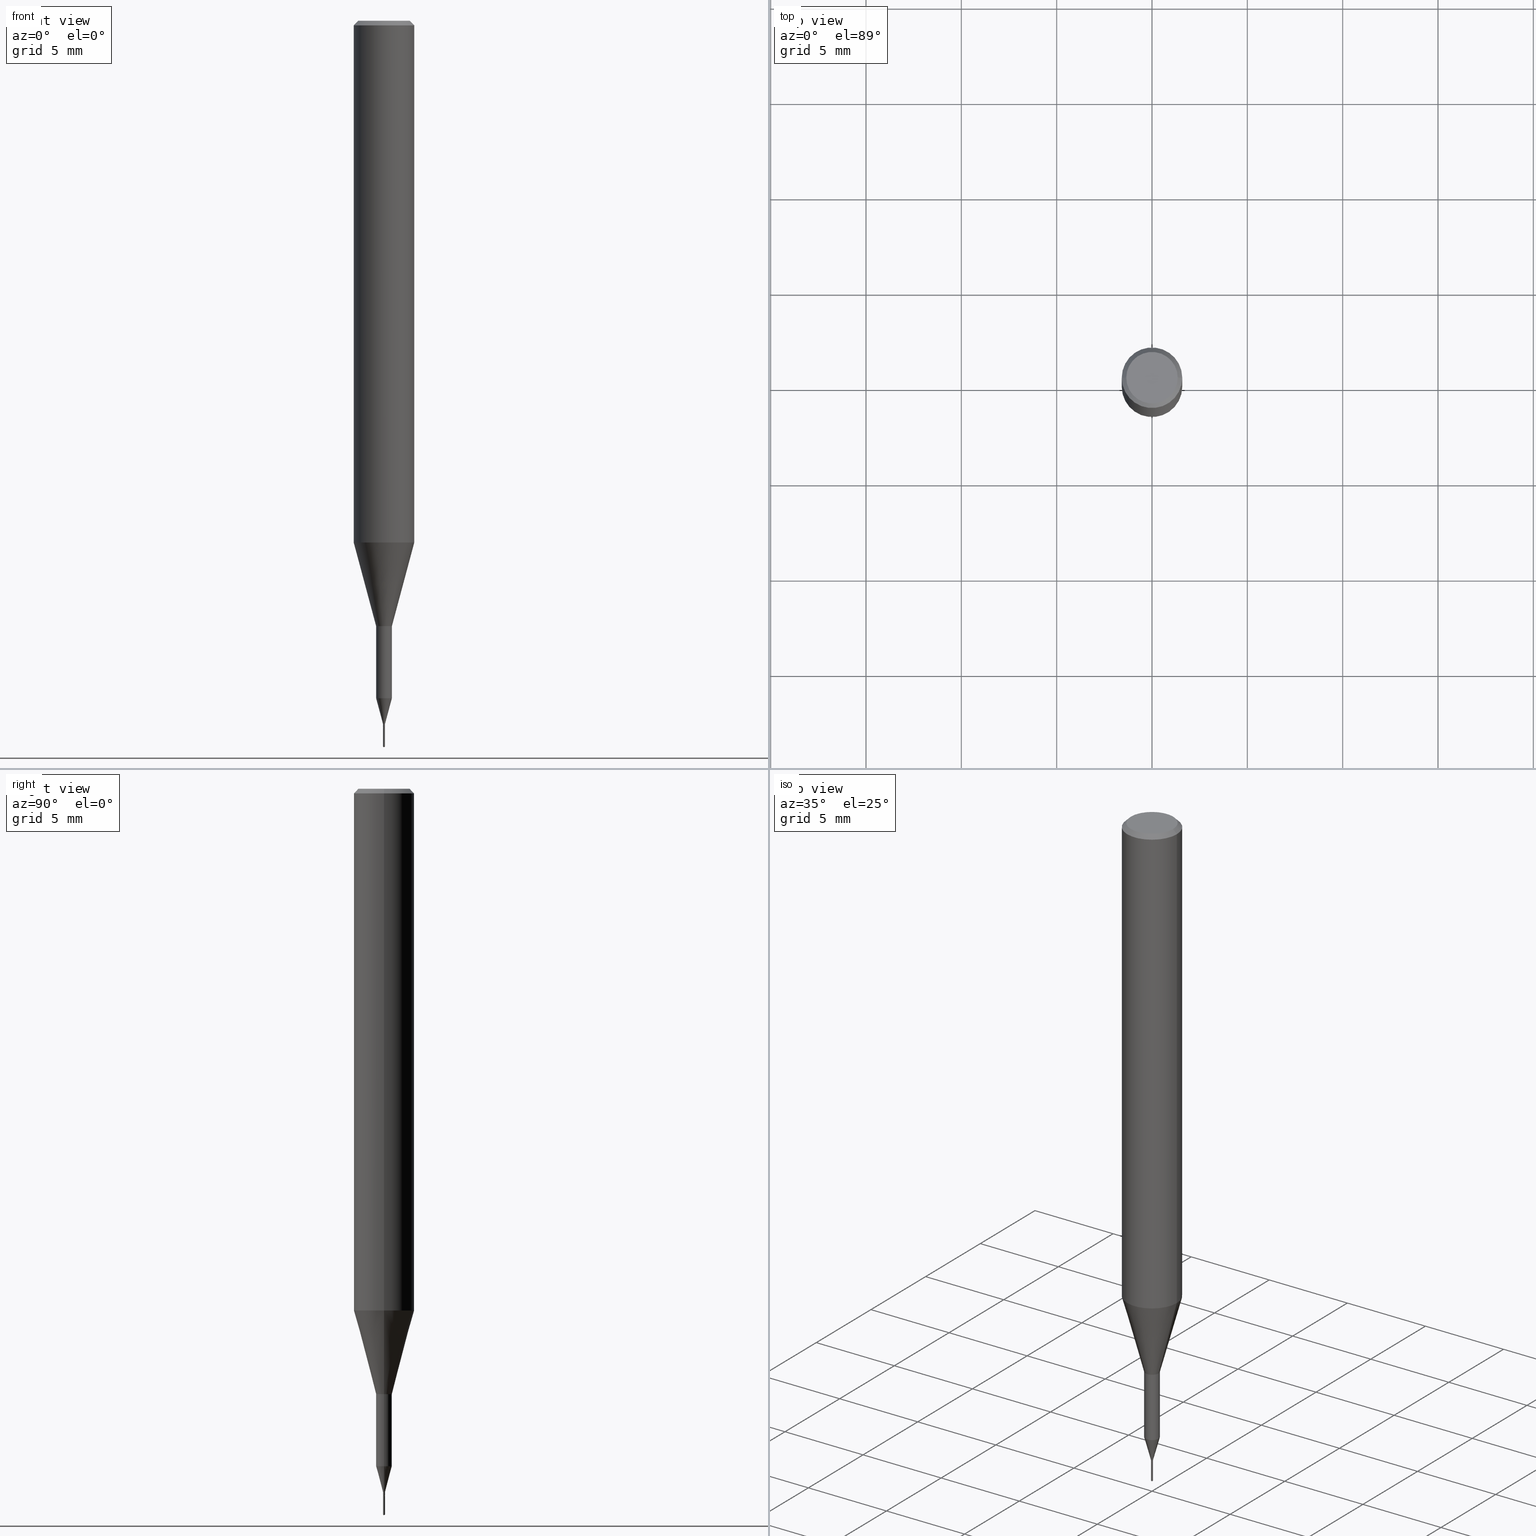
[diagram: canonical four-view strip — front | top / right | iso, engineering-drawing reading convention]
A machine part, canonical four-view strip (front | top / right | iso — engineering-drawing reading convention). The complete STEP part file that produces these views, byte-faithful:
ISO-10303-21;
HEADER;
FILE_DESCRIPTION (( 'STEP AP203' ),
    '1' );
FILE_NAME ('07098.STEP',
    '2024-04-19T13:29:56',
    ( '' ),
    ( '' ),
    'SwSTEP 2.0',
    'SolidWorks 2023',
    '' );
FILE_SCHEMA (( 'CONFIG_CONTROL_DESIGN' ));
ENDSEC;

DATA;
#1 = DIRECTION ( 'NONE',  ( 1.000000000000000000, -6.982962677686264344E-15, 0.000000000000000000 ) ) ;
#2 = CARTESIAN_POINT ( 'NONE',  ( -0.06250000000000012490, -3.317607122755211895E-15, -1.077392650149939346 ) ) ;
#3 = DIRECTION ( 'NONE',  ( -2.445468806185136877E-29, 3.491481338843145188E-15, 1.000000000000000000 ) ) ;
#4 = VERTEX_POINT ( 'NONE', #379 ) ;
#5 = DIRECTION ( 'NONE',  ( 2.461818195733172515E-29, -3.468068082460894112E-15, -1.000000000000000000 ) ) ;
#6 = VECTOR ( 'NONE', #485, 39.37007874015748143 ) ;
#7 = CARTESIAN_POINT ( 'NONE',  ( 3.569161722627207033E-29, -5.095817014041571654E-15, -1.459500000000000020 ) ) ;
#8 = EDGE_LOOP ( 'NONE', ( #531, #38, #203 ) ) ;
#9 = CIRCLE ( 'NONE', #79, 0.002000000000000000042 ) ;
#10 = PLANE ( 'NONE',  #145 ) ;
#11 = CC_DESIGN_PERSON_AND_ORGANIZATION_ASSIGNMENT ( #378, #554, ( #574 ) ) ;
#12 = ORIENTED_EDGE ( 'NONE', *, *, #456, .F. ) ;
#13 = CARTESIAN_POINT ( 'NONE',  ( 3.550820706580818935E-29, -5.069630904000248312E-15, -1.452000000000000179 ) ) ;
#14 = ORIENTED_EDGE ( 'NONE', *, *, #429, .F. ) ;
#15 = DIRECTION ( 'NONE',  ( 1.000000000000000000, 0.000000000000000000, 0.000000000000000000 ) ) ;
#16 = DIRECTION ( 'NONE',  ( -2.445468806185136597E-29, 3.491481338843145583E-15, 1.000000000000000000 ) ) ;
#17 = CONICAL_SURFACE ( 'NONE', #527, 0.01624999999999999709, 0.2617993877991489637 ) ;
#18 = DIRECTION ( 'NONE',  ( -2.445468806185136597E-29, 3.491481338843145583E-15, 1.000000000000000000 ) ) ;
#19 = DIRECTION ( 'NONE',  ( -5.985567269335709354E-15, -0.8571673007020770285, 0.5150380749101128863 ) ) ;
#20 = VERTEX_POINT ( 'NONE', #454 ) ;
#21 = DATE_TIME_ROLE ( 'creation_date' ) ;
#22 = DIRECTION ( 'NONE',  ( -2.461818195733173075E-29, 3.468068082460893717E-15, 1.000000000000000000 ) ) ;
#23 = EDGE_LOOP ( 'NONE', ( #353, #54, #373, #131 ) ) ;
#24 = MECHANICAL_CONTEXT ( 'NONE', #129, 'mechanical' ) ;
#25 = DIRECTION ( 'NONE',  ( 1.000000000000000000, -6.982962677686265922E-15, 4.876176775795935793E-29 ) ) ;
#26 = ORIENTED_EDGE ( 'NONE', *, *, #481, .F. ) ;
#27 = LINE ( 'NONE', #77, #92 ) ;
#28 = VERTEX_POINT ( 'NONE', #106 ) ;
#29 = DIRECTION ( 'NONE',  ( 1.000000000000000000, -6.982962677686259611E-15, 0.000000000000000000 ) ) ;
#30 = EDGE_CURVE ( 'NONE', #222, #406, #556, .T. ) ;
#31 = CIRCLE ( 'NONE', #328, 0.06250000000000000000 ) ;
#32 = CONICAL_SURFACE ( 'NONE', #291, 65.52281426575878243, 1.029744258676589475 ) ;
#33 = EDGE_LOOP ( 'NONE', ( #499, #230 ) ) ;
#34 = CARTESIAN_POINT ( 'NONE',  ( -0.002000000000000022159, -5.081606159326369638E-15, -1.459500000000000020 ) ) ;
#35 = VERTEX_POINT ( 'NONE', #235 ) ;
#36 = EDGE_CURVE ( 'NONE', #174, #438, #65, .T. ) ;
#37 = CYLINDRICAL_SURFACE ( 'NONE', #459, 0.002000000000000048180 ) ;
#38 = ORIENTED_EDGE ( 'NONE', *, *, #304, .T. ) ;
#39 = DIRECTION ( 'NONE',  ( 1.000000000000000000, -6.982962677686267499E-15, 4.876176775795936353E-29 ) ) ;
#40 = ORIENTED_EDGE ( 'NONE', *, *, #195, .F. ) ;
#41 = VECTOR ( 'NONE', #275, 39.37007874015748143 ) ;
#42 = CONICAL_SURFACE ( 'NONE', #425, 0.06250000000000012490, 0.2617993877991501295 ) ;
#43 = DIRECTION ( 'NONE',  ( -6.982962677686264344E-15, -1.000000000000000000, 3.468864327942105002E-15 ) ) ;
#44 = DIRECTION ( 'NONE',  ( 1.000000000000000000, -6.982962677686266711E-15, 0.000000000000000000 ) ) ;
#45 = CC_DESIGN_DATE_AND_TIME_ASSIGNMENT ( #290, #21, ( #361 ) ) ;
#46 = CARTESIAN_POINT ( 'NONE',  ( 3.570384457030299835E-29, -5.097562754710993158E-15, -1.459999999999999964 ) ) ;
#47 = ORIENTED_EDGE ( 'NONE', *, *, #590, .F. ) ;
#48 = AXIS2_PLACEMENT_3D ( 'NONE', #13, #539, #183 ) ;
#49 = CYLINDRICAL_SURFACE ( 'NONE', #168, 0.001999999999999999608 ) ;
#50 = CARTESIAN_POINT ( 'NONE',  ( -1.396592535533682563E-17, -0.002000000000005097093, -1.459999999999999964 ) ) ;
#51 = EDGE_CURVE ( 'NONE', #89, #549, #57, .T. ) ;
#52 = DIRECTION ( 'NONE',  ( -2.445468806185136597E-29, 3.491481338843145583E-15, 1.000000000000000000 ) ) ;
#53 = CIRCLE ( 'NONE', #301, 0.01624999999999999709 ) ;
#54 = ORIENTED_EDGE ( 'NONE', *, *, #206, .T. ) ;
#55 = CARTESIAN_POINT ( 'NONE',  ( 2.634730117954813298E-29, -3.761696332605275695E-15, -1.077392650149939346 ) ) ;
#56 = EDGE_CURVE ( 'NONE', #172, #210, #553, .T. ) ;
#57 = LINE ( 'NONE', #50, #493 ) ;
#58 = EDGE_LOOP ( 'NONE', ( #452, #390, #524, #47 ) ) ;
#59 = CARTESIAN_POINT ( 'NONE',  ( 3.420766459460459311E-29, -4.883947907059311527E-15, -1.398818275992143922 ) ) ;
#60 = ORIENTED_EDGE ( 'NONE', *, *, #36, .T. ) ;
#61 = DIRECTION ( 'NONE',  ( -6.982962677686266711E-15, -1.000000000000000000, 0.000000000000000000 ) ) ;
#62 = CIRCLE ( 'NONE', #121, 0.001500000000000000248 ) ;
#63 = AXIS2_PLACEMENT_3D ( 'NONE', #394, #339, #423 ) ;
#64 = CARTESIAN_POINT ( 'NONE',  ( -0.01624999999999999709, -4.768484712498295341E-15, -1.398818275992143922 ) ) ;
#65 = CIRCLE ( 'NONE', #402, 0.002000000000000022159 ) ;
#66 = APPROVAL_STATUS ( 'not_yet_approved' ) ;
#67 = CARTESIAN_POINT ( 'NONE',  ( 0.002000000000000022159, -5.109782939396944472E-15, -1.459500000000000020 ) ) ;
#68 = ORIENTED_EDGE ( 'NONE', *, *, #96, .T. ) ;
#69 = APPROVAL_DATE_TIME ( #463, #147 ) ;
#70 = APPROVAL ( #105, 'UNSPECIFIED' ) ;
#71 = CIRCLE ( 'NONE', #365, 0.01624999999999999709 ) ;
#72 = PLANE ( 'NONE',  #278 ) ;
#73 = ORIENTED_EDGE ( 'NONE', *, *, #368, .T. ) ;
#74 = DIRECTION ( 'NONE',  ( 0.2588190451025214611, 1.565188264969621573E-15, 0.9659258262890682012 ) ) ;
#75 = ADVANCED_FACE ( 'NONE', ( #332 ), #233, .T. ) ;
#76 = EDGE_LOOP ( 'NONE', ( #586, #308, #26, #228 ) ) ;
#77 = CARTESIAN_POINT ( 'NONE',  ( 3.693145918954258114E-29, -5.202102123691339984E-15, -1.500000000000000222 ) ) ;
#78 = CC_DESIGN_APPROVAL ( #147, ( #361 ) ) ;
#79 = AXIS2_PLACEMENT_3D ( 'NONE', #295, #22, #161 ) ;
#80 = DIRECTION ( 'NONE',  ( -0.7071067811866342812, 7.493145998870668127E-15, 0.7071067811864606423 ) ) ;
#81 = ADVANCED_FACE ( 'NONE', ( #552 ), #241, .T. ) ;
#82 = CIRCLE ( 'NONE', #517, 0.06250000000000012490 ) ;
#83 = CARTESIAN_POINT ( 'NONE',  ( 3.665898765649583509E-29, -5.232117826939713419E-15, -1.498798278761944935 ) ) ;
#84 = VERTEX_POINT ( 'NONE', #237 ) ;
#85 = CYLINDRICAL_SURFACE ( 'NONE', #273, 0.01624999999999999709 ) ;
#86 = ORIENTED_EDGE ( 'NONE', *, *, #180, .F. ) ;
#87 = LOCAL_TIME ( 9, 29, 56.00000000000000000, #333 ) ;
#88 = EDGE_CURVE ( 'NONE', #164, #406, #31, .T. ) ;
#89 = VERTEX_POINT ( 'NONE', #366 ) ;
#90 = CIRCLE ( 'NONE', #329, 0.002000000000000022159 ) ;
#91 = DIRECTION ( 'NONE',  ( 6.982962677686265922E-15, 1.000000000000000000, -3.468068082460894112E-15 ) ) ;
#92 = VECTOR ( 'NONE', #170, 39.37007874015748143 ) ;
#93 = DIMENSIONAL_EXPONENTS ( 1.000000000000000000, 0.000000000000000000, 0.000000000000000000, 0.000000000000000000, 0.000000000000000000, 0.000000000000000000, 0.000000000000000000 ) ;
#94 = CARTESIAN_POINT ( 'NONE',  ( 2.292627005798580186E-31, -3.273263755165469568E-17, -0.009375000000000058634 ) ) ;
#95 = CARTESIAN_POINT ( 'NONE',  ( -9.325311902510782353E-28, 1.313018280047029287E-13, 37.87007874015748143 ) ) ;
#96 = EDGE_CURVE ( 'NONE', #540, #28, #71, .T. ) ;
#97 = ORIENTED_EDGE ( 'NONE', *, *, #101, .T. ) ;
#98 = ORIENTED_EDGE ( 'NONE', *, *, #154, .F. ) ;
#99 = FACE_OUTER_BOUND ( 'NONE', #351, .T. ) ;
#100 = DIRECTION ( 'NONE',  ( 1.000000000000000000, -6.982962677686267499E-15, 4.876176775795936353E-29 ) ) ;
#101 = EDGE_CURVE ( 'NONE', #226, #540, #138, .T. ) ;
#102 = CARTESIAN_POINT ( 'NONE',  ( 3.570384457030299835E-29, -5.097562754710993158E-15, -1.459999999999999964 ) ) ;
#103 = CARTESIAN_POINT ( 'NONE',  ( 2.292627005798580186E-31, -3.273263755165469568E-17, -0.009375000000000058634 ) ) ;
#104 = ORIENTED_EDGE ( 'NONE', *, *, #418, .T. ) ;
#105 = APPROVAL_STATUS ( 'not_yet_approved' ) ;
#106 = CARTESIAN_POINT ( 'NONE',  ( -0.01624999999999999709, -4.768484712498295341E-15, -1.398818275992143922 ) ) ;
#107 = PRODUCT_DEFINITION_SHAPE ( 'NONE', 'NONE',  #361 ) ;
#108 = CALENDAR_DATE ( 2024, 19, 4 ) ;
#109 = DIRECTION ( 'NONE',  ( 0.7071067811865455743, -7.319954787623248157E-15, -0.7071067811865493491 ) ) ;
#110 = AXIS2_PLACEMENT_3D ( 'NONE', #321, #548, #44 ) ;
#111 = DIRECTION ( 'NONE',  ( 0.000000000000000000, 0.000000000000000000, 1.000000000000000000 ) ) ;
#112 = CARTESIAN_POINT ( 'NONE',  ( 3.665898765649583509E-29, -5.232117826939713419E-15, -1.498798278761944935 ) ) ;
#113 = PERSON_AND_ORGANIZATION_ROLE ( 'creator' ) ;
#114 = CARTESIAN_POINT ( 'NONE',  ( 0.001500000000000000248, -5.108037198727522179E-15, -1.459999999999999964 ) ) ;
#115 = ORIENTED_EDGE ( 'NONE', *, *, #376, .T. ) ;
#116 = CC_DESIGN_PERSON_AND_ORGANIZATION_ASSIGNMENT ( #432, #385, ( #229 ) ) ;
#117 = DATE_AND_TIME ( #562, #344 ) ;
#118 = LINE ( 'NONE', #384, #526 ) ;
#119 = ORIENTED_EDGE ( 'NONE', *, *, #154, .T. ) ;
#120 = DIRECTION ( 'NONE',  ( 1.000000000000000000, -6.982962677686007964E-15, 0.000000000000000000 ) ) ;
#121 = AXIS2_PLACEMENT_3D ( 'NONE', #405, #582, #120 ) ;
#122 = FACE_OUTER_BOUND ( 'NONE', #33, .T. ) ;
#123 = EDGE_CURVE ( 'NONE', #406, #164, #299, .T. ) ;
#124 = LINE ( 'NONE', #305, #186 ) ;
#125 = VECTOR ( 'NONE', #19, 39.37007874015748143 ) ;
#126 = DIRECTION ( 'NONE',  ( 1.000000000000000000, -6.982962677686266711E-15, 4.875930095424100059E-29 ) ) ;
#127 = ORIENTED_EDGE ( 'NONE', *, *, #36, .F. ) ;
#128 = AXIS2_PLACEMENT_3D ( 'NONE', #352, #532, #126 ) ;
#129 = APPLICATION_CONTEXT ( 'configuration controlled 3d designs of mechanical parts and assemblies' ) ;
#130 = DIRECTION ( 'NONE',  ( -2.461818195733173075E-29, 3.468068082460893717E-15, 1.000000000000000000 ) ) ;
#131 = ORIENTED_EDGE ( 'NONE', *, *, #101, .F. ) ;
#132 = DIRECTION ( 'NONE',  ( -6.982962677686265133E-15, -1.000000000000000000, 0.000000000000000000 ) ) ;
#133 = ORIENTED_EDGE ( 'NONE', *, *, #590, .T. ) ;
#134 = CARTESIAN_POINT ( 'NONE',  ( 0.000000000000000000, 0.000000000000000000, 0.000000000000000000 ) ) ;
#135 = ADVANCED_FACE ( 'NONE', ( #506 ), #140, .T. ) ;
#136 = AXIS2_PLACEMENT_3D ( 'NONE', #193, #190, #320 ) ;
#137 = FACE_OUTER_BOUND ( 'NONE', #8, .T. ) ;
#138 = LINE ( 'NONE', #143, #41 ) ;
#139 = CARTESIAN_POINT ( 'NONE',  ( -9.325311902510782353E-28, 1.313018280047029287E-13, 37.87007874015748143 ) ) ;
#140 = CYLINDRICAL_SURFACE ( 'NONE', #306, 0.01624999999999999709 ) ;
#141 = EDGE_CURVE ( 'NONE', #438, #4, #280, .T. ) ;
#142 = DIRECTION ( 'NONE',  ( -6.982962677686264344E-15, -1.000000000000000000, 3.468864327942105002E-15 ) ) ;
#143 = CARTESIAN_POINT ( 'NONE',  ( 0.01624999999999999709, -4.997421050571713203E-15, -1.398818275992143922 ) ) ;
#144 =( NAMED_UNIT ( * ) SI_UNIT ( $, .STERADIAN. ) SOLID_ANGLE_UNIT ( ) );
#145 = AXIS2_PLACEMENT_3D ( 'NONE', #461, #5, #91 ) ;
#146 = DIRECTION ( 'NONE',  ( -2.445468806185136597E-29, 3.491481338843145583E-15, 1.000000000000000000 ) ) ;
#147 = APPROVAL ( #66, 'UNSPECIFIED' ) ;
#148 = CARTESIAN_POINT ( 'NONE',  ( 0.002000000000000074201, -5.083596829355621130E-15, -1.452000000000000179 ) ) ;
#149 = AXIS2_PLACEMENT_3D ( 'NONE', #196, #111, #15 ) ;
#150 = VECTOR ( 'NONE', #345, 39.37007874015748143 ) ;
#151 = PERSON_AND_ORGANIZATION ( #153, #192 ) ;
#152 = CARTESIAN_POINT ( 'NONE',  ( -0.06250000000000012490, -3.317607122755211895E-15, -1.077392650149939346 ) ) ;
#153 = PERSON ( 'UNSPECIFIED', 'UNSPECIFIED', 'UNSPECIFIED', ('UNSPECIFIED'), ('UNSPECIFIED'), ('UNSPECIFIED') ) ;
#154 = EDGE_CURVE ( 'NONE', #20, #222, #458, .T. ) ;
#155 = CIRCLE ( 'NONE', #486, 0.001999999999999999174 ) ;
#156 = CALENDAR_DATE ( 2024, 19, 4 ) ;
#157 = CARTESIAN_POINT ( 'NONE',  ( 0.06250000000000000000, -4.691678049070463404E-16, -0.009375000000000058634 ) ) ;
#158 = AXIS2_PLACEMENT_3D ( 'NONE', #398, #480, #403 ) ;
#159 = ORIENTED_EDGE ( 'NONE', *, *, #123, .F. ) ;
#160 = APPROVAL_DATE_TIME ( #117, #219 ) ;
#161 = DIRECTION ( 'NONE',  ( -6.982962677686266711E-15, -1.000000000000000000, 0.000000000000000000 ) ) ;
#162 = APPLICATION_CONTEXT ( 'configuration controlled 3d designs of mechanical parts and assemblies' ) ;
#163 = EDGE_CURVE ( 'NONE', #89, #393, #155, .T. ) ;
#164 = VERTEX_POINT ( 'NONE', #157 ) ;
#165 = CARTESIAN_POINT ( 'NONE',  ( 0.06250000000000006939, -4.364351673553921624E-16, 3.047610484872463374E-30 ) ) ;
#166 = EDGE_CURVE ( 'NONE', #419, #164, #392, .T. ) ;
#167 = LINE ( 'NONE', #260, #6 ) ;
#168 = AXIS2_PLACEMENT_3D ( 'NONE', #231, #498, #132 ) ;
#169 = DIRECTION ( 'NONE',  ( 2.438088387897960049E-29, -3.491481338843145188E-15, -1.000000000000000000 ) ) ;
#170 = DIRECTION ( 'NONE',  ( 6.090539988449542566E-15, 0.8571673007020805812, 0.5150380749101068911 ) ) ;
#171 = EDGE_LOOP ( 'NONE', ( #312, #133, #97, #265 ) ) ;
#172 = VERTEX_POINT ( 'NONE', #342 ) ;
#173 = LINE ( 'NONE', #214, #367 ) ;
#174 = VERTEX_POINT ( 'NONE', #67 ) ;
#175 = CIRCLE ( 'NONE', #546, 0.05312499999999999861 ) ;
#176 = DIRECTION ( 'NONE',  ( -2.445468806185136597E-29, 3.491481338843145583E-15, 1.000000000000000000 ) ) ;
#177 = ORIENTED_EDGE ( 'NONE', *, *, #350, .F. ) ;
#178 = DIRECTION ( 'NONE',  ( -1.000000000000000000, 6.982962677686266711E-15, 0.000000000000000000 ) ) ;
#179 = DIRECTION ( 'NONE',  ( 1.000000000000000000, -6.982962677686007964E-15, 0.000000000000000000 ) ) ;
#180 = EDGE_CURVE ( 'NONE', #540, #84, #118, .T. ) ;
#181 = ORIENTED_EDGE ( 'NONE', *, *, #356, .T. ) ;
#182 = ADVANCED_BREP_SHAPE_REPRESENTATION ( '07098', ( #577, #581, #149 ), #211 ) ;
#183 = DIRECTION ( 'NONE',  ( 1.000000000000000000, -6.982962677686074228E-15, 0.000000000000000000 ) ) ;
#184 = DIRECTION ( 'NONE',  ( 2.445468806185136597E-29, -3.491481338843145583E-15, -1.000000000000000000 ) ) ;
#185 = ORIENTED_EDGE ( 'NONE', *, *, #244, .F. ) ;
#186 = VECTOR ( 'NONE', #80, 39.37007874015748854 ) ;
#187 =( NAMED_UNIT ( * ) PLANE_ANGLE_UNIT ( ) SI_UNIT ( $, .RADIAN. ) );
#188 = ADVANCED_FACE ( 'NONE', ( #288 ), #317, .T. ) ;
#189 = DIRECTION ( 'NONE',  ( 1.000000000000000000, -6.982962677686266711E-15, 0.000000000000000000 ) ) ;
#190 = DIRECTION ( 'NONE',  ( -2.461818195733173075E-29, 3.468068082460893717E-15, 1.000000000000000000 ) ) ;
#191 = ORIENTED_EDGE ( 'NONE', *, *, #310, .F. ) ;
#192 = ORGANIZATION ( 'UNSPECIFIED', 'UNSPECIFIED', '' ) ;
#193 = CARTESIAN_POINT ( 'NONE',  ( 3.570384457030299835E-29, -5.097562754710993158E-15, -1.459999999999999964 ) ) ;
#194 = ORIENTED_EDGE ( 'NONE', *, *, #166, .F. ) ;
#195 = EDGE_CURVE ( 'NONE', #438, #174, #90, .T. ) ;
#196 = CARTESIAN_POINT ( 'NONE',  ( 0.000000000000000000, 0.000000000000000000, 0.000000000000000000 ) ) ;
#197 = CIRCLE ( 'NONE', #536, 0.01624999999999999709 ) ;
#198 = DIRECTION ( 'NONE',  ( -0.7071067811865455743, 2.468850131082236945E-15, -0.7071067811865493491 ) ) ;
#199 = DIRECTION ( 'NONE',  ( -2.445468806185136597E-29, 3.491481338843145583E-15, 1.000000000000000000 ) ) ;
#200 = ADVANCED_FACE ( 'NONE', ( #251 ), #471, .T. ) ;
#201 = COORDINATED_UNIVERSAL_TIME_OFFSET ( 5, 0, .BEHIND. ) ;
#202 = LINE ( 'NONE', #245, #484 ) ;
#203 = ORIENTED_EDGE ( 'NONE', *, *, #163, .F. ) ;
#204 = COORDINATED_UNIVERSAL_TIME_OFFSET ( 5, 0, .BEHIND. ) ;
#205 = DIRECTION ( 'NONE',  ( 1.000000000000000000, -6.982962677686255667E-15, 0.000000000000000000 ) ) ;
#206 = EDGE_CURVE ( 'NONE', #4, #28, #571, .T. ) ;
#207 = AXIS2_PLACEMENT_3D ( 'NONE', #585, #530, #534 ) ;
#208 = ORIENTED_EDGE ( 'NONE', *, *, #250, .T. ) ;
#209 = LINE ( 'NONE', #165, #150 ) ;
#210 = VERTEX_POINT ( 'NONE', #114 ) ;
#211 =( GEOMETRIC_REPRESENTATION_CONTEXT ( 3 ) GLOBAL_UNCERTAINTY_ASSIGNED_CONTEXT ( ( #472 ) ) GLOBAL_UNIT_ASSIGNED_CONTEXT ( ( #364, #187, #144 ) ) REPRESENTATION_CONTEXT ( 'NONE', 'WORKASPACE' ) );
#212 = DIRECTION ( 'NONE',  ( -2.445468806185136597E-29, 3.491481338843145583E-15, 1.000000000000000000 ) ) ;
#213 = ORIENTED_EDGE ( 'NONE', *, *, #543, .F. ) ;
#214 = CARTESIAN_POINT ( 'NONE',  ( 0.06250000000000012490, -4.198131499960668153E-15, -1.077392650149939346 ) ) ;
#215 = CIRCLE ( 'NONE', #331, 0.002000000000000074201 ) ;
#216 = CARTESIAN_POINT ( 'NONE',  ( 3.420766459460459311E-29, -4.883947907059311527E-15, -1.398818275992143922 ) ) ;
#217 = VERTEX_POINT ( 'NONE', #297 ) ;
#218 = CARTESIAN_POINT ( 'NONE',  ( 2.634730117954813298E-29, -3.761696332605275695E-15, -1.077392650149939346 ) ) ;
#219 = APPROVAL ( #511, 'UNSPECIFIED' ) ;
#220 = EDGE_LOOP ( 'NONE', ( #569, #252, #355, #191 ) ) ;
#221 = DIRECTION ( 'NONE',  ( 1.000000000000000000, -6.982962677686266711E-15, 4.876176775795935232E-29 ) ) ;
#222 = VERTEX_POINT ( 'NONE', #152 ) ;
#223 = AXIS2_PLACEMENT_3D ( 'NONE', #139, #369, #43 ) ;
#224 = CYLINDRICAL_SURFACE ( 'NONE', #578, 0.06250000000000006939 ) ;
#225 = CARTESIAN_POINT ( 'NONE',  ( -0.002000000000000048180, 1.421085471520234606E-17, -9.837870180510048138E-32 ) ) ;
#226 = VERTEX_POINT ( 'NONE', #148 ) ;
#227 = FACE_OUTER_BOUND ( 'NONE', #243, .T. ) ;
#228 = ORIENTED_EDGE ( 'NONE', *, *, #51, .F. ) ;
#229 = PRODUCT_DEFINITION_FORMATION_WITH_SPECIFIED_SOURCE ( 'ANY', '', #381, .NOT_KNOWN. ) ;
#230 = ORIENTED_EDGE ( 'NONE', *, *, #424, .T. ) ;
#231 = CARTESIAN_POINT ( 'NONE',  ( 3.570384457030299835E-29, -5.097562754710993158E-15, -1.459999999999999964 ) ) ;
#232 = ORIENTED_EDGE ( 'NONE', *, *, #356, .F. ) ;
#233 = CONICAL_SURFACE ( 'NONE', #253, 0.06250000000000000000, 0.7853981633974456145 ) ;
#234 = LINE ( 'NONE', #551, #319 ) ;
#235 = CARTESIAN_POINT ( 'NONE',  ( -0.05312499999999999861, 3.873362110279099094E-16, -5.787680772773044021E-18 ) ) ;
#236 = DIRECTION ( 'NONE',  ( -2.445468806185136597E-29, 3.491481338843145583E-15, 1.000000000000000000 ) ) ;
#237 = CARTESIAN_POINT ( 'NONE',  ( 0.01624999999999999709, -4.477824817066334148E-15, -1.250000000000000000 ) ) ;
#238 = ORIENTED_EDGE ( 'NONE', *, *, #258, .T. ) ;
#239 = LOCAL_TIME ( 9, 29, 56.00000000000000000, #204 ) ;
#240 = DIRECTION ( 'NONE',  ( 1.000000000000000000, -6.982962677686266711E-15, 4.876176775795935793E-29 ) ) ;
#241 = CONICAL_SURFACE ( 'NONE', #289, 0.001500000000000000248, 0.7853981633975710697 ) ;
#242 = EDGE_CURVE ( 'NONE', #226, #4, #215, .T. ) ;
#243 = EDGE_LOOP ( 'NONE', ( #98, #538, #104, #177 ) ) ;
#244 = EDGE_CURVE ( 'NONE', #35, #419, #175, .T. ) ;
#245 = CARTESIAN_POINT ( 'NONE',  ( 1.421085471523770305E-17, 0.001999999999994902123, -1.459999999999999964 ) ) ;
#246 = PERSON_AND_ORGANIZATION_ROLE ( 'design_owner' ) ;
#247 = DIRECTION ( 'NONE',  ( -2.445468806185136597E-29, 3.491481338843145583E-15, 1.000000000000000000 ) ) ;
#248 = DESIGN_CONTEXT ( 'detailed design', #162, 'design' ) ;
#249 = APPROVAL_ROLE ( '' ) ;
#250 = EDGE_CURVE ( 'NONE', #421, #549, #9, .T. ) ;
#251 = FACE_OUTER_BOUND ( 'NONE', #529, .T. ) ;
#252 = ORIENTED_EDGE ( 'NONE', *, *, #451, .T. ) ;
#253 = AXIS2_PLACEMENT_3D ( 'NONE', #94, #184, #415 ) ;
#254 = SECURITY_CLASSIFICATION_LEVEL ( 'unclassified' ) ;
#255 = CARTESIAN_POINT ( 'NONE',  ( 3.570384457030299835E-29, -5.097562754710993158E-15, -1.459999999999999964 ) ) ;
#256 = EDGE_LOOP ( 'NONE', ( #474, #238, #12 ) ) ;
#257 = CARTESIAN_POINT ( 'NONE',  ( 0.05312499999999999861, -4.129888592719939842E-16, -5.787680772767651417E-18 ) ) ;
#258 = EDGE_CURVE ( 'NONE', #494, #89, #389, .T. ) ;
#259 = CIRCLE ( 'NONE', #48, 0.002000000000000074201 ) ;
#260 = CARTESIAN_POINT ( 'NONE',  ( -0.01624999999999999709, 1.154631945610162595E-16, -7.993269521664220284E-31 ) ) ;
#261 = EDGE_LOOP ( 'NONE', ( #73, #119, #213, #460 ) ) ;
#262 = DIRECTION ( 'NONE',  ( -2.445468806185136877E-29, 3.491481338843145188E-15, 1.000000000000000000 ) ) ;
#263 = EDGE_CURVE ( 'NONE', #393, #421, #202, .T. ) ;
#264 = DIRECTION ( 'NONE',  ( 1.000000000000000000, -6.982962677686264344E-15, 0.000000000000000000 ) ) ;
#265 = ORIENTED_EDGE ( 'NONE', *, *, #451, .F. ) ;
#266 = ADVANCED_FACE ( 'NONE', ( #292 ), #72, .F. ) ;
#267 = CARTESIAN_POINT ( 'NONE',  ( 0.000000000000000000, 0.000000000000000000, 0.000000000000000000 ) ) ;
#268 = ORIENTED_EDGE ( 'NONE', *, *, #300, .F. ) ;
#269 = DIRECTION ( 'NONE',  ( -2.445468806185136597E-29, 3.491481338843145583E-15, 1.000000000000000000 ) ) ;
#270 = VECTOR ( 'NONE', #386, 39.37007874015747433 ) ;
#271 = ORIENTED_EDGE ( 'NONE', *, *, #250, .F. ) ;
#272 = EDGE_CURVE ( 'NONE', #35, #406, #427, .T. ) ;
#273 = AXIS2_PLACEMENT_3D ( 'NONE', #267, #443, #39 ) ;
#274 = CARTESIAN_POINT ( 'NONE',  ( 0.01624999999999999709, -4.997421050571713203E-15, -1.398818275992143922 ) ) ;
#275 = DIRECTION ( 'NONE',  ( 0.2588190451025202954, 1.565188264969630251E-15, 0.9659258262890684232 ) ) ;
#276 = DIRECTION ( 'NONE',  ( 2.445468806185136597E-29, -3.491481338843145583E-15, -1.000000000000000000 ) ) ;
#277 = DIRECTION ( 'NONE',  ( 1.000000000000000000, -6.982962677686255667E-15, 0.000000000000000000 ) ) ;
#278 = AXIS2_PLACEMENT_3D ( 'NONE', #255, #468, #25 ) ;
#279 = FACE_OUTER_BOUND ( 'NONE', #535, .T. ) ;
#280 = LINE ( 'NONE', #225, #380 ) ;
#281 = DIRECTION ( 'NONE',  ( -2.445468806185136597E-29, 3.491481338843145583E-15, 1.000000000000000000 ) ) ;
#282 = DIRECTION ( 'NONE',  ( -2.445468806185136597E-29, 3.491481338843145583E-15, 1.000000000000000000 ) ) ;
#283 = COORDINATED_UNIVERSAL_TIME_OFFSET ( 5, 0, .BEHIND. ) ;
#284 = CYLINDRICAL_SURFACE ( 'NONE', #455, 0.06250000000000006939 ) ;
#285 = CC_DESIGN_SECURITY_CLASSIFICATION ( #574, ( #229 ) ) ;
#286 = EDGE_CURVE ( 'NONE', #217, #164, #209, .T. ) ;
#287 = APPROVAL_DATE_TIME ( #294, #70 ) ;
#288 = FACE_OUTER_BOUND ( 'NONE', #171, .T. ) ;
#289 = AXIS2_PLACEMENT_3D ( 'NONE', #497, #509, #179 ) ;
#290 = DATE_AND_TIME ( #156, #466 ) ;
#291 = AXIS2_PLACEMENT_3D ( 'NONE', #95, #313, #142 ) ;
#292 = FACE_OUTER_BOUND ( 'NONE', #510, .T. ) ;
#293 = ADVANCED_FACE ( 'NONE', ( #525 ), #284, .T. ) ;
#294 = DATE_AND_TIME ( #108, #387 ) ;
#295 = CARTESIAN_POINT ( 'NONE',  ( 3.570384457030299835E-29, -5.097562754710993158E-15, -1.459999999999999964 ) ) ;
#296 = ORIENTED_EDGE ( 'NONE', *, *, #51, .T. ) ;
#297 = CARTESIAN_POINT ( 'NONE',  ( 0.06250000000000012490, -4.198131499960668153E-15, -1.077392650149939346 ) ) ;
#298 = ORIENTED_EDGE ( 'NONE', *, *, #88, .T. ) ;
#299 = CIRCLE ( 'NONE', #110, 0.06250000000000000000 ) ;
#300 = EDGE_CURVE ( 'NONE', #174, #226, #563, .T. ) ;
#301 = AXIS2_PLACEMENT_3D ( 'NONE', #303, #212, #395 ) ;
#302 = PLANE ( 'NONE',  #487 ) ;
#303 = CARTESIAN_POINT ( 'NONE',  ( 3.056836007731421306E-29, -4.364351673553932471E-15, -1.250000000000000000 ) ) ;
#304 = EDGE_CURVE ( 'NONE', #494, #393, #27, .T. ) ;
#305 = CARTESIAN_POINT ( 'NONE',  ( -0.001500000000000000248, -5.086904613674591251E-15, -1.459999999999999964 ) ) ;
#306 = AXIS2_PLACEMENT_3D ( 'NONE', #134, #503, #100 ) ;
#307 = DIRECTION ( 'NONE',  ( -2.445468806185136597E-29, 3.491481338843145583E-15, 1.000000000000000000 ) ) ;
#308 = ORIENTED_EDGE ( 'NONE', *, *, #263, .T. ) ;
#309 = CIRCLE ( 'NONE', #136, 0.002000000000000000042 ) ;
#310 = EDGE_CURVE ( 'NONE', #20, #84, #53, .T. ) ;
#311 = DIRECTION ( 'NONE',  ( -6.982962677686266711E-15, -1.000000000000000000, 0.000000000000000000 ) ) ;
#312 = ORIENTED_EDGE ( 'NONE', *, *, #206, .F. ) ;
#313 = DIRECTION ( 'NONE',  ( -2.461818195733173075E-29, 3.468068082460893717E-15, 1.000000000000000000 ) ) ;
#314 = ORIENTED_EDGE ( 'NONE', *, *, #286, .T. ) ;
#315 = EDGE_LOOP ( 'NONE', ( #396, #478, #584, #413 ) ) ;
#316 = FACE_OUTER_BOUND ( 'NONE', #377, .T. ) ;
#317 = CONICAL_SURFACE ( 'NONE', #555, 0.01624999999999999709, 0.2617993877991489637 ) ;
#318 = DIRECTION ( 'NONE',  ( -2.461818195733173075E-29, 3.468068082460894112E-15, 1.000000000000000000 ) ) ;
#319 = VECTOR ( 'NONE', #407, 39.37007874015748854 ) ;
#320 = DIRECTION ( 'NONE',  ( -6.982962677686266711E-15, -1.000000000000000000, 0.000000000000000000 ) ) ;
#321 = CARTESIAN_POINT ( 'NONE',  ( 2.292627005798580186E-31, -3.273263755165469568E-17, -0.009375000000000058634 ) ) ;
#322 =( LENGTH_UNIT ( ) NAMED_UNIT ( * ) SI_UNIT ( $, .METRE. ) );
#323 = CLOSED_SHELL ( 'NONE', ( #75, #293, #580, #470, #382, #200, #587, #266, #81, #349, #188, #135, #500, #561, #476, #412 ) ) ;
#324 = DIRECTION ( 'NONE',  ( 1.000000000000000000, -6.982962677686007964E-15, 0.000000000000000000 ) ) ;
#325 = CC_DESIGN_DATE_AND_TIME_ASSIGNMENT ( #508, #383, ( #574 ) ) ;
#326 = FACE_OUTER_BOUND ( 'NONE', #261, .T. ) ;
#327 = CARTESIAN_POINT ( 'NONE',  ( 3.420766459460459311E-29, -4.883947907059311527E-15, -1.398818275992143922 ) ) ;
#328 = AXIS2_PLACEMENT_3D ( 'NONE', #103, #282, #189 ) ;
#329 = AXIS2_PLACEMENT_3D ( 'NONE', #560, #16, #205 ) ;
#330 = COORDINATED_UNIVERSAL_TIME_OFFSET ( 5, 0, .BEHIND. ) ;
#331 = AXIS2_PLACEMENT_3D ( 'NONE', #566, #247, #465 ) ;
#332 = FACE_OUTER_BOUND ( 'NONE', #572, .T. ) ;
#333 = COORDINATED_UNIVERSAL_TIME_OFFSET ( 5, 0, .BEHIND. ) ;
#334 = CARTESIAN_POINT ( 'NONE',  ( 0.000000000000000000, 0.000000000000000000, 0.000000000000000000 ) ) ;
#335 = PERSON_AND_ORGANIZATION_ROLE ( 'design_supplier' ) ;
#336 = DIRECTION ( 'NONE',  ( 1.000000000000000000, -6.982962677686266711E-15, 4.875930095424100059E-29 ) ) ;
#337 = AXIS2_PLACEMENT_3D ( 'NONE', #46, #363, #324 ) ;
#338 = PERSON_AND_ORGANIZATION ( #153, #192 ) ;
#339 = DIRECTION ( 'NONE',  ( -2.445468806185136597E-29, 3.491481338843145583E-15, 1.000000000000000000 ) ) ;
#340 = ORIENTED_EDGE ( 'NONE', *, *, #272, .T. ) ;
#341 = PERSON_AND_ORGANIZATION ( #153, #192 ) ;
#342 = CARTESIAN_POINT ( 'NONE',  ( -0.001500000000000000248, -5.084255386500480839E-15, -1.459999999999999964 ) ) ;
#343 = EDGE_LOOP ( 'NONE', ( #589, #411, #314, #159 ) ) ;
#344 = LOCAL_TIME ( 9, 29, 56.00000000000000000, #330 ) ;
#345 = DIRECTION ( 'NONE',  ( -2.445468806185136877E-29, 3.491481338843145188E-15, 1.000000000000000000 ) ) ;
#346 = VECTOR ( 'NONE', #262, 39.37007874015748143 ) ;
#347 = CIRCLE ( 'NONE', #128, 0.05312499999999999861 ) ;
#348 = CYLINDRICAL_SURFACE ( 'NONE', #207, 0.001999999999999999608 ) ;
#349 = ADVANCED_FACE ( 'NONE', ( #588 ), #37, .T. ) ;
#350 = EDGE_CURVE ( 'NONE', #222, #217, #82, .T. ) ;
#351 = EDGE_LOOP ( 'NONE', ( #434, #208 ) ) ;
#352 = CARTESIAN_POINT ( 'NONE',  ( 1.415359278996747967E-46, -2.020757941330909984E-32, -5.787680772770392401E-18 ) ) ;
#353 = ORIENTED_EDGE ( 'NONE', *, *, #242, .T. ) ;
#354 = CARTESIAN_POINT ( 'NONE',  ( 0.002000000000000048180, -1.396592535537286980E-17, 9.752353551592105778E-32 ) ) ;
#355 = ORIENTED_EDGE ( 'NONE', *, *, #180, .T. ) ;
#356 = EDGE_CURVE ( 'NONE', #210, #172, #62, .T. ) ;
#357 = FACE_OUTER_BOUND ( 'NONE', #76, .T. ) ;
#358 = ORIENTED_EDGE ( 'NONE', *, *, #429, .T. ) ;
#359 = CARTESIAN_POINT ( 'NONE',  ( 1.421085471523866139E-17, 0.001999999999994768116, -1.498798278761944935 ) ) ;
#360 = ORIENTED_EDGE ( 'NONE', *, *, #263, .F. ) ;
#361 = PRODUCT_DEFINITION ( 'UNKNOWN', '', #229, #248 ) ;
#362 = CARTESIAN_POINT ( 'NONE',  ( 2.292627005798580186E-31, -3.273263755165469568E-17, -0.009375000000000058634 ) ) ;
#363 = DIRECTION ( 'NONE',  ( -2.445468806185136597E-29, 3.491481338843145583E-15, 1.000000000000000000 ) ) ;
#364 =( CONVERSION_BASED_UNIT ( 'INCH', #409 ) LENGTH_UNIT ( ) NAMED_UNIT ( #93 ) );
#365 = AXIS2_PLACEMENT_3D ( 'NONE', #327, #449, #370 ) ;
#366 = CARTESIAN_POINT ( 'NONE',  ( -1.396592535533587345E-17, -0.002000000000005232401, -1.498798278761944935 ) ) ;
#367 = VECTOR ( 'NONE', #74, 39.37007874015747433 ) ;
#368 = EDGE_CURVE ( 'NONE', #84, #20, #469, .T. ) ;
#369 = DIRECTION ( 'NONE',  ( -2.461818195733173075E-29, 3.468068082460893717E-15, 1.000000000000000000 ) ) ;
#370 = DIRECTION ( 'NONE',  ( 1.000000000000000000, -6.982962677686259611E-15, 0.000000000000000000 ) ) ;
#371 = FACE_OUTER_BOUND ( 'NONE', #256, .T. ) ;
#372 = VECTOR ( 'NONE', #3, 39.37007874015748143 ) ;
#373 = ORIENTED_EDGE ( 'NONE', *, *, #96, .F. ) ;
#374 = ORIENTED_EDGE ( 'NONE', *, *, #56, .F. ) ;
#375 = APPROVAL_PERSON_ORGANIZATION ( #341, #219, #570 ) ;
#376 = EDGE_CURVE ( 'NONE', #28, #20, #167, .T. ) ;
#377 = EDGE_LOOP ( 'NONE', ( #181, #358, #127, #462 ) ) ;
#378 = PERSON_AND_ORGANIZATION ( #153, #192 ) ;
#379 = CARTESIAN_POINT ( 'NONE',  ( -0.002000000000000074201, -5.068513104305707967E-15, -1.452000000000000179 ) ) ;
#380 = VECTOR ( 'NONE', #408, 39.37007874015748143 ) ;
#381 = PRODUCT ( '07098', '07098', '', ( #24 ) ) ;
#382 = ADVANCED_FACE ( 'NONE', ( #437 ), #17, .T. ) ;
#383 = DATE_TIME_ROLE ( 'classification_date' ) ;
#384 = CARTESIAN_POINT ( 'NONE',  ( 0.01624999999999999709, -1.134731435124018242E-16, 7.923787260668394963E-31 ) ) ;
#385 = PERSON_AND_ORGANIZATION_ROLE ( 'creator' ) ;
#386 = DIRECTION ( 'NONE',  ( -0.2588190451025214611, 5.211531920934551042E-15, 0.9659258262890682012 ) ) ;
#387 = LOCAL_TIME ( 9, 29, 56.00000000000000000, #283 ) ;
#388 = APPLICATION_PROTOCOL_DEFINITION ( 'international standard', 'config_control_design', 1994, #162 ) ;
#389 = LINE ( 'NONE', #516, #125 ) ;
#390 = ORIENTED_EDGE ( 'NONE', *, *, #195, .T. ) ;
#391 = PERSON_AND_ORGANIZATION ( #153, #192 ) ;
#392 = LINE ( 'NONE', #433, #446 ) ;
#393 = VERTEX_POINT ( 'NONE', #359 ) ;
#394 = CARTESIAN_POINT ( 'NONE',  ( 0.000000000000000000, 0.000000000000000000, 0.000000000000000000 ) ) ;
#395 = DIRECTION ( 'NONE',  ( 1.000000000000000000, -6.982962677686288799E-15, 0.000000000000000000 ) ) ;
#396 = ORIENTED_EDGE ( 'NONE', *, *, #543, .T. ) ;
#397 = CIRCLE ( 'NONE', #416, 0.001999999999999999174 ) ;
#398 = CARTESIAN_POINT ( 'NONE',  ( 3.056836007731421306E-29, -4.364351673553932471E-15, -1.250000000000000000 ) ) ;
#399 = ADVANCED_FACE ( 'NONE', ( #357 ), #348, .T. ) ;
#400 = CARTESIAN_POINT ( 'NONE',  ( 0.000000000000000000, 0.000000000000000000, 0.000000000000000000 ) ) ;
#401 = ORIENTED_EDGE ( 'NONE', *, *, #272, .F. ) ;
#402 = AXIS2_PLACEMENT_3D ( 'NONE', #7, #146, #277 ) ;
#403 = DIRECTION ( 'NONE',  ( 1.000000000000000000, -6.982962677686288799E-15, 0.000000000000000000 ) ) ;
#404 = ORIENTED_EDGE ( 'NONE', *, *, #242, .F. ) ;
#405 = CARTESIAN_POINT ( 'NONE',  ( 3.570384457030299835E-29, -5.097562754710993158E-15, -1.459999999999999964 ) ) ;
#406 = VERTEX_POINT ( 'NONE', #537 ) ;
#407 = DIRECTION ( 'NONE',  ( 0.7071067811866342812, -2.468850131083165828E-15, 0.7071067811864606423 ) ) ;
#408 = DIRECTION ( 'NONE',  ( -2.445468806185136877E-29, 3.491481338843145188E-15, 1.000000000000000000 ) ) ;
#409 = LENGTH_MEASURE_WITH_UNIT ( LENGTH_MEASURE( 0.02539999999999999897 ), #322 );
#410 = CONICAL_SURFACE ( 'NONE', #442, 0.06250000000000012490, 0.2617993877991501295 ) ;
#411 = ORIENTED_EDGE ( 'NONE', *, *, #350, .T. ) ;
#412 = ADVANCED_FACE ( 'NONE', ( #122 ), #302, .F. ) ;
#413 = ORIENTED_EDGE ( 'NONE', *, *, #286, .F. ) ;
#414 = CARTESIAN_POINT ( 'NONE',  ( 0.000000000000000000, 0.000000000000000000, 0.000000000000000000 ) ) ;
#415 = DIRECTION ( 'NONE',  ( -1.000000000000000000, 6.982962677686266711E-15, 0.000000000000000000 ) ) ;
#416 = AXIS2_PLACEMENT_3D ( 'NONE', #83, #130, #311 ) ;
#417 = FACE_OUTER_BOUND ( 'NONE', #343, .T. ) ;
#418 = EDGE_CURVE ( 'NONE', #84, #217, #173, .T. ) ;
#419 = VERTEX_POINT ( 'NONE', #257 ) ;
#420 = DIRECTION ( 'NONE',  ( 1.000000000000000000, -6.982962677686266711E-15, 4.876176775795935793E-29 ) ) ;
#421 = VERTEX_POINT ( 'NONE', #579 ) ;
#422 = APPROVAL_ROLE ( '' ) ;
#423 = DIRECTION ( 'NONE',  ( 1.000000000000000000, -6.982962677686266711E-15, 4.876176775795935232E-29 ) ) ;
#424 = EDGE_CURVE ( 'NONE', #419, #35, #347, .T. ) ;
#425 = AXIS2_PLACEMENT_3D ( 'NONE', #55, #269, #447 ) ;
#426 = ORIENTED_EDGE ( 'NONE', *, *, #424, .F. ) ;
#427 = LINE ( 'NONE', #573, #502 ) ;
#428 = DIRECTION ( 'NONE',  ( 1.000000000000000000, -6.982962677686259611E-15, 0.000000000000000000 ) ) ;
#429 = EDGE_CURVE ( 'NONE', #172, #438, #124, .T. ) ;
#430 = CARTESIAN_POINT ( 'NONE',  ( 1.415359278996747967E-46, -2.020757941330909984E-32, -5.787680772770392401E-18 ) ) ;
#431 = EDGE_LOOP ( 'NONE', ( #194, #185, #340, #489 ) ) ;
#432 = PERSON_AND_ORGANIZATION ( #153, #192 ) ;
#433 = CARTESIAN_POINT ( 'NONE',  ( 0.06250000000000000000, -4.615137624123753937E-16, -0.009375000000000058634 ) ) ;
#434 = ORIENTED_EDGE ( 'NONE', *, *, #481, .T. ) ;
#435 = DIRECTION ( 'NONE',  ( -1.000000000000000000, 6.982962677686265922E-15, -4.876176775795935793E-29 ) ) ;
#436 = EDGE_LOOP ( 'NONE', ( #14, #521, #504, #40 ) ) ;
#437 = FACE_OUTER_BOUND ( 'NONE', #23, .T. ) ;
#438 = VERTEX_POINT ( 'NONE', #34 ) ;
#439 = CARTESIAN_POINT ( 'NONE',  ( 7.076796394983739835E-47, -1.010378970665454992E-32, -2.893840386385196200E-18 ) ) ;
#440 = CARTESIAN_POINT ( 'NONE',  ( 3.420766459460459311E-29, -4.883947907059311527E-15, -1.398818275992143922 ) ) ;
#441 = ORIENTED_EDGE ( 'NONE', *, *, #368, .F. ) ;
#442 = AXIS2_PLACEMENT_3D ( 'NONE', #453, #450, #1 ) ;
#443 = DIRECTION ( 'NONE',  ( -2.445468806185136597E-29, 3.491481338843145583E-15, 1.000000000000000000 ) ) ;
#444 = CC_DESIGN_PERSON_AND_ORGANIZATION_ASSIGNMENT ( #475, #335, ( #229 ) ) ;
#445 = ORIENTED_EDGE ( 'NONE', *, *, #166, .T. ) ;
#446 = VECTOR ( 'NONE', #109, 39.37007874015748854 ) ;
#447 = DIRECTION ( 'NONE',  ( 1.000000000000000000, -6.982962677686264344E-15, 0.000000000000000000 ) ) ;
#448 = CIRCLE ( 'NONE', #496, 0.06250000000000012490 ) ;
#449 = DIRECTION ( 'NONE',  ( -2.445468806185136597E-29, 3.491481338843145583E-15, 1.000000000000000000 ) ) ;
#450 = DIRECTION ( 'NONE',  ( -2.445468806185136597E-29, 3.491481338843145583E-15, 1.000000000000000000 ) ) ;
#451 = EDGE_CURVE ( 'NONE', #28, #540, #197, .T. ) ;
#452 = ORIENTED_EDGE ( 'NONE', *, *, #141, .F. ) ;
#453 = CARTESIAN_POINT ( 'NONE',  ( 2.634730117954813298E-29, -3.761696332605275695E-15, -1.077392650149939346 ) ) ;
#454 = CARTESIAN_POINT ( 'NONE',  ( -0.01624999999999999709, -4.508686595745605419E-15, -1.250000000000000000 ) ) ;
#455 = AXIS2_PLACEMENT_3D ( 'NONE', #334, #18, #240 ) ;
#456 = EDGE_CURVE ( 'NONE', #393, #89, #397, .T. ) ;
#457 = CARTESIAN_POINT ( 'NONE',  ( 2.634730117954813298E-29, -3.761696332605275695E-15, -1.077392650149939346 ) ) ;
#458 = LINE ( 'NONE', #2, #270 ) ;
#459 = AXIS2_PLACEMENT_3D ( 'NONE', #400, #576, #221 ) ;
#460 = ORIENTED_EDGE ( 'NONE', *, *, #418, .F. ) ;
#461 = CARTESIAN_POINT ( 'NONE',  ( 3.570384457030299835E-29, -5.097562754710993158E-15, -1.459999999999999964 ) ) ;
#462 = ORIENTED_EDGE ( 'NONE', *, *, #567, .F. ) ;
#463 = DATE_AND_TIME ( #518, #87 ) ;
#464 = CC_DESIGN_PERSON_AND_ORGANIZATION_ASSIGNMENT ( #151, #246, ( #381 ) ) ;
#465 = DIRECTION ( 'NONE',  ( 1.000000000000000000, -6.982962677686074228E-15, 0.000000000000000000 ) ) ;
#466 = LOCAL_TIME ( 9, 29, 56.00000000000000000, #201 ) ;
#467 = SHAPE_DEFINITION_REPRESENTATION ( #107, #182 ) ;
#468 = DIRECTION ( 'NONE',  ( -2.438088387897960049E-29, 3.491481338843145188E-15, 1.000000000000000000 ) ) ;
#469 = CIRCLE ( 'NONE', #158, 0.01624999999999999709 ) ;
#470 = ADVANCED_FACE ( 'NONE', ( #491 ), #85, .T. ) ;
#471 = CYLINDRICAL_SURFACE ( 'NONE', #63, 0.002000000000000048180 ) ;
#472 = UNCERTAINTY_MEASURE_WITH_UNIT (LENGTH_MEASURE( 1.000000000000000082E-05 ), #364, 'distance_accuracy_value', 'NONE');
#473 = DIRECTION ( 'NONE',  ( -2.461818195733173075E-29, 3.468068082460893717E-15, 1.000000000000000000 ) ) ;
#474 = ORIENTED_EDGE ( 'NONE', *, *, #304, .F. ) ;
#475 = PERSON_AND_ORGANIZATION ( #153, #192 ) ;
#476 = ADVANCED_FACE ( 'NONE', ( #501 ), #558, .T. ) ;
#477 = DIRECTION ( 'NONE',  ( -2.461818195733173075E-29, 3.468068082460894112E-15, 1.000000000000000000 ) ) ;
#478 = ORIENTED_EDGE ( 'NONE', *, *, #30, .T. ) ;
#479 = CONICAL_SURFACE ( 'NONE', #223, 65.52281426575878243, 1.029744258676589475 ) ;
#480 = DIRECTION ( 'NONE',  ( -2.445468806185136597E-29, 3.491481338843145583E-15, 1.000000000000000000 ) ) ;
#481 = EDGE_CURVE ( 'NONE', #549, #421, #309, .T. ) ;
#482 = DIRECTION ( 'NONE',  ( -2.445468806185136597E-29, 3.491481338843145583E-15, 1.000000000000000000 ) ) ;
#483 = APPROVAL_PERSON_ORGANIZATION ( #391, #147, #249 ) ;
#484 = VECTOR ( 'NONE', #477, 39.37007874015748143 ) ;
#485 = DIRECTION ( 'NONE',  ( -2.445468806185136877E-29, 3.491481338843145188E-15, 1.000000000000000000 ) ) ;
#486 = AXIS2_PLACEMENT_3D ( 'NONE', #112, #473, #61 ) ;
#487 = AXIS2_PLACEMENT_3D ( 'NONE', #439, #169, #435 ) ;
#488 = DIRECTION ( 'NONE',  ( 1.000000000000000000, -6.982962677686259611E-15, 0.000000000000000000 ) ) ;
#489 = ORIENTED_EDGE ( 'NONE', *, *, #123, .T. ) ;
#490 = PRODUCT_RELATED_PRODUCT_CATEGORY ( 'detail', '', ( #381 ) ) ;
#491 = FACE_OUTER_BOUND ( 'NONE', #545, .T. ) ;
#492 = ORIENTED_EDGE ( 'NONE', *, *, #141, .T. ) ;
#493 = VECTOR ( 'NONE', #318, 39.37007874015748143 ) ;
#494 = VERTEX_POINT ( 'NONE', #495 ) ;
#495 = CARTESIAN_POINT ( 'NONE',  ( 3.692727293599759753E-29, -5.202102123691340773E-15, -1.500000000000000222 ) ) ;
#496 = AXIS2_PLACEMENT_3D ( 'NONE', #457, #52, #542 ) ;
#497 = CARTESIAN_POINT ( 'NONE',  ( 3.570384457030299835E-29, -5.097562754710993158E-15, -1.459999999999999964 ) ) ;
#498 = DIRECTION ( 'NONE',  ( -2.461818195733173075E-29, 3.468068082460893717E-15, 1.000000000000000000 ) ) ;
#499 = ORIENTED_EDGE ( 'NONE', *, *, #244, .T. ) ;
#500 = ADVANCED_FACE ( 'NONE', ( #227 ), #42, .T. ) ;
#501 = FACE_OUTER_BOUND ( 'NONE', #431, .T. ) ;
#502 = VECTOR ( 'NONE', #198, 39.37007874015748854 ) ;
#503 = DIRECTION ( 'NONE',  ( -2.445468806185136597E-29, 3.491481338843145583E-15, 1.000000000000000000 ) ) ;
#504 = ORIENTED_EDGE ( 'NONE', *, *, #567, .T. ) ;
#505 = CARTESIAN_POINT ( 'NONE',  ( -1.396592535533682871E-17, -0.002000000000005097960, -1.459999999999999964 ) ) ;
#506 = FACE_OUTER_BOUND ( 'NONE', #220, .T. ) ;
#507 = VECTOR ( 'NONE', #512, 39.37007874015748143 ) ;
#508 = DATE_AND_TIME ( #565, #239 ) ;
#509 = DIRECTION ( 'NONE',  ( -2.445468806185136597E-29, 3.491481338843145583E-15, 1.000000000000000000 ) ) ;
#510 = EDGE_LOOP ( 'NONE', ( #232, #374 ) ) ;
#511 = APPROVAL_STATUS ( 'not_yet_approved' ) ;
#512 = DIRECTION ( 'NONE',  ( -0.2588190451025202954, 5.211531920934543942E-15, 0.9659258262890684232 ) ) ;
#513 = CONICAL_SURFACE ( 'NONE', #550, 0.001500000000000000248, 0.7853981633975710697 ) ;
#514 = ADVANCED_FACE ( 'NONE', ( #371 ), #479, .T. ) ;
#515 = APPLICATION_PROTOCOL_DEFINITION ( 'international standard', 'config_control_design', 1994, #129 ) ;
#516 = CARTESIAN_POINT ( 'NONE',  ( 3.644987076119493180E-29, -5.270468832327515999E-15, -1.500000000000000222 ) ) ;
#517 = AXIS2_PLACEMENT_3D ( 'NONE', #218, #482, #264 ) ;
#518 = CALENDAR_DATE ( 2024, 19, 4 ) ;
#519 = DIRECTION ( 'NONE',  ( -2.445468806185136597E-29, 3.491481338843145583E-15, 1.000000000000000000 ) ) ;
#520 = ADVANCED_FACE ( 'NONE', ( #99 ), #10, .F. ) ;
#521 = ORIENTED_EDGE ( 'NONE', *, *, #56, .T. ) ;
#522 = DIRECTION ( 'NONE',  ( -2.445468806185136877E-29, 3.491481338843145188E-15, 1.000000000000000000 ) ) ;
#523 = APPROVAL_PERSON_ORGANIZATION ( #338, #70, #422 ) ;
#524 = ORIENTED_EDGE ( 'NONE', *, *, #300, .T. ) ;
#525 = FACE_OUTER_BOUND ( 'NONE', #315, .T. ) ;
#526 = VECTOR ( 'NONE', #522, 39.37007874015748143 ) ;
#527 = AXIS2_PLACEMENT_3D ( 'NONE', #440, #176, #29 ) ;
#528 = CC_DESIGN_PERSON_AND_ORGANIZATION_ASSIGNMENT ( #559, #113, ( #361 ) ) ;
#529 = EDGE_LOOP ( 'NONE', ( #60, #492, #404, #268 ) ) ;
#530 = DIRECTION ( 'NONE',  ( -2.461818195733173075E-29, 3.468068082460893717E-15, 1.000000000000000000 ) ) ;
#531 = ORIENTED_EDGE ( 'NONE', *, *, #258, .F. ) ;
#532 = DIRECTION ( 'NONE',  ( -2.445468806185136597E-29, 3.491481338843145583E-15, 1.000000000000000000 ) ) ;
#533 = ADVANCED_FACE ( 'NONE', ( #279 ), #49, .T. ) ;
#534 = DIRECTION ( 'NONE',  ( -6.982962677686265133E-15, -1.000000000000000000, 0.000000000000000000 ) ) ;
#535 = EDGE_LOOP ( 'NONE', ( #360, #557, #296, #271 ) ) ;
#536 = AXIS2_PLACEMENT_3D ( 'NONE', #216, #307, #488 ) ;
#537 = CARTESIAN_POINT ( 'NONE',  ( -0.06250000000000000000, -1.453125275228401137E-15, -0.009375000000000058634 ) ) ;
#538 = ORIENTED_EDGE ( 'NONE', *, *, #310, .T. ) ;
#539 = DIRECTION ( 'NONE',  ( -2.445468806185136597E-29, 3.491481338843145583E-15, 1.000000000000000000 ) ) ;
#540 = VERTEX_POINT ( 'NONE', #274 ) ;
#541 = CC_DESIGN_APPROVAL ( #70, ( #574 ) ) ;
#542 = DIRECTION ( 'NONE',  ( 1.000000000000000000, -6.982962677686264344E-15, 0.000000000000000000 ) ) ;
#543 = EDGE_CURVE ( 'NONE', #217, #222, #448, .T. ) ;
#544 = CARTESIAN_POINT ( 'NONE',  ( -0.06250000000000006939, 4.440892098500631092E-16, -3.074334431409319267E-30 ) ) ;
#545 = EDGE_LOOP ( 'NONE', ( #68, #115, #441, #86 ) ) ;
#546 = AXIS2_PLACEMENT_3D ( 'NONE', #430, #199, #336 ) ;
#547 = DIRECTION ( 'NONE',  ( 1.000000000000000000, -6.982962677686007964E-15, 0.000000000000000000 ) ) ;
#548 = DIRECTION ( 'NONE',  ( -2.445468806185136597E-29, 3.491481338843145583E-15, 1.000000000000000000 ) ) ;
#549 = VERTEX_POINT ( 'NONE', #505 ) ;
#550 = AXIS2_PLACEMENT_3D ( 'NONE', #102, #281, #547 ) ;
#551 = CARTESIAN_POINT ( 'NONE',  ( 0.001500000000000000248, -5.108037198727522179E-15, -1.459999999999999964 ) ) ;
#552 = FACE_OUTER_BOUND ( 'NONE', #436, .T. ) ;
#553 = CIRCLE ( 'NONE', #337, 0.001500000000000000248 ) ;
#554 = PERSON_AND_ORGANIZATION_ROLE ( 'classification_officer' ) ;
#555 = AXIS2_PLACEMENT_3D ( 'NONE', #59, #519, #428 ) ;
#556 = LINE ( 'NONE', #544, #372 ) ;
#557 = ORIENTED_EDGE ( 'NONE', *, *, #456, .T. ) ;
#558 = CONICAL_SURFACE ( 'NONE', #568, 0.06250000000000000000, 0.7853981633974456145 ) ;
#559 = PERSON_AND_ORGANIZATION ( #153, #192 ) ;
#560 = CARTESIAN_POINT ( 'NONE',  ( 3.569161722627207033E-29, -5.095817014041571654E-15, -1.459500000000000020 ) ) ;
#561 = ADVANCED_FACE ( 'NONE', ( #417 ), #224, .T. ) ;
#562 = CALENDAR_DATE ( 2024, 19, 4 ) ;
#563 = LINE ( 'NONE', #354, #346 ) ;
#564 = CC_DESIGN_APPROVAL ( #219, ( #229 ) ) ;
#565 = CALENDAR_DATE ( 2024, 19, 4 ) ;
#566 = CARTESIAN_POINT ( 'NONE',  ( 3.550820706580818935E-29, -5.069630904000248312E-15, -1.452000000000000179 ) ) ;
#567 = EDGE_CURVE ( 'NONE', #210, #174, #234, .T. ) ;
#568 = AXIS2_PLACEMENT_3D ( 'NONE', #362, #276, #178 ) ;
#569 = ORIENTED_EDGE ( 'NONE', *, *, #376, .F. ) ;
#570 = APPROVAL_ROLE ( '' ) ;
#571 = LINE ( 'NONE', #64, #507 ) ;
#572 = EDGE_LOOP ( 'NONE', ( #426, #445, #298, #401 ) ) ;
#573 = CARTESIAN_POINT ( 'NONE',  ( -0.06250000000000000000, 4.037025298037369984E-16, -0.009375000000000058634 ) ) ;
#574 = SECURITY_CLASSIFICATION ( '', '', #254 ) ;
#575 = ADVANCED_FACE ( 'NONE', ( #137 ), #32, .T. ) ;
#576 = DIRECTION ( 'NONE',  ( -2.445468806185136597E-29, 3.491481338843145583E-15, 1.000000000000000000 ) ) ;
#577 = MANIFOLD_SOLID_BREP ( 'Body-Move/Copy2[1]', #583 ) ;
#578 = AXIS2_PLACEMENT_3D ( 'NONE', #414, #236, #420 ) ;
#579 = CARTESIAN_POINT ( 'NONE',  ( 1.421085471523866447E-17, 0.001999999999994902557, -1.459999999999999964 ) ) ;
#580 = ADVANCED_FACE ( 'NONE', ( #326 ), #410, .T. ) ;
#581 = MANIFOLD_SOLID_BREP ( 'Body-Move/Copy2[2]', #323 ) ;
#582 = DIRECTION ( 'NONE',  ( -2.445468806185136597E-29, 3.491481338843145583E-15, 1.000000000000000000 ) ) ;
#583 = CLOSED_SHELL ( 'NONE', ( #399, #575, #514, #533, #520 ) ) ;
#584 = ORIENTED_EDGE ( 'NONE', *, *, #88, .F. ) ;
#585 = CARTESIAN_POINT ( 'NONE',  ( 3.570384457030299835E-29, -5.097562754710993158E-15, -1.459999999999999964 ) ) ;
#586 = ORIENTED_EDGE ( 'NONE', *, *, #163, .T. ) ;
#587 = ADVANCED_FACE ( 'NONE', ( #316 ), #513, .T. ) ;
#588 = FACE_OUTER_BOUND ( 'NONE', #58, .T. ) ;
#589 = ORIENTED_EDGE ( 'NONE', *, *, #30, .F. ) ;
#590 = EDGE_CURVE ( 'NONE', #4, #226, #259, .T. ) ;
ENDSEC;
END-ISO-10303-21;
